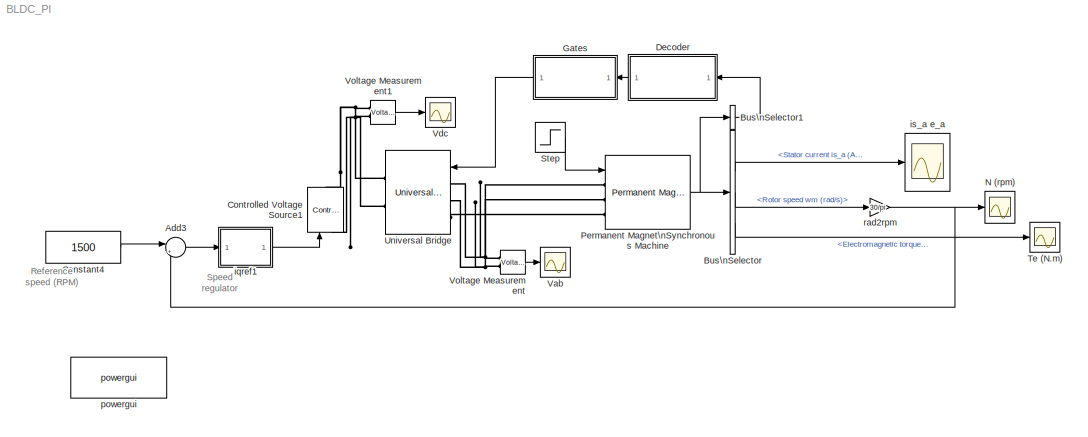
MODEL BLDC_PI
KIND model
BLOCK [Sum] Add3
  IconShape = round
  InputSameDT = off
  Inputs = |+-
  OutDataTypeStr = Inherit: Inherit via internal rule
  Ports = [2, 1]
  SID = 1
  SaturateOnIntegerOverflow = off
BLOCK [BusSelector] Bus\nSelector
  OutputAsBus = off
  OutputSignals = Stator current is_a (A),Rotor speed wm (rad/s),Electromagnetic torque Te (N*m)
  Ports = [1, 3]
  SID = 2
BLOCK [BusSelector] Bus\nSelector1
  OutputAsBus = on
  OutputSignals = Hall effect signal h_a,Hall effect signal h_b,Hall effect signal h_c
  Ports = [1, 1]
  SID = 3
BLOCK [Constant] Constant4
  SID = 4
  Value = 1500
BLOCK [Reference] Controlled Voltage Source1  REF=powerlib/Electrical\nSources/Controlled Voltage Source
  Amplitude = 160
  Frequency = 0
  Initialize = on
  Measurements = None
  Phase = 0
  Ports = [1, 0, 0, 0, 0, 1, 1]
  SID = 5
  SourceBlock = powerlib/Electrical\nSources/Controlled Voltage Source
  SourceProductBaseCode = PS
  SourceProductName = Simscape Electrical
  SourceType = Controlled Voltage Source
  Source_Type = AC
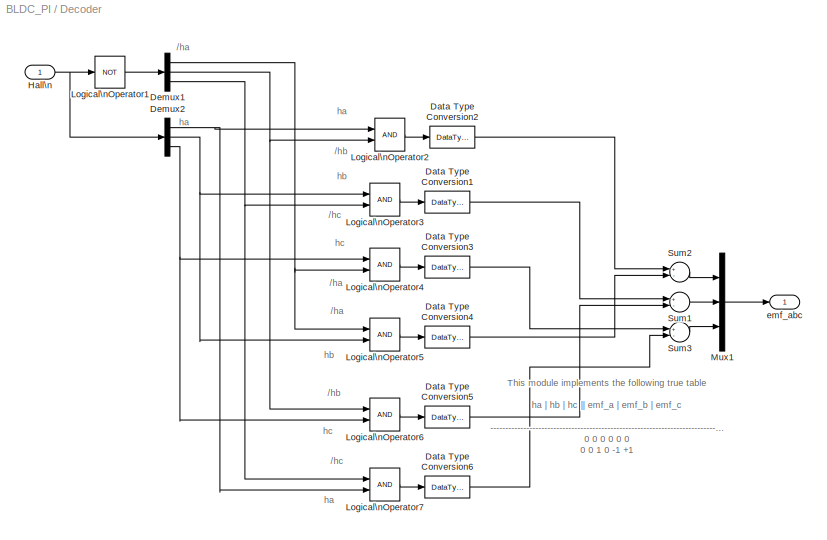
BLOCK [SubSystem] Decoder
  Ports = [1, 1]
  RequestExecContextInheritance = off
  SID = 6
BLOCK [DataTypeConversion] Decoder/Data Type Conversion1
  RndMeth = Floor
  SID = 8
  SaturateOnIntegerOverflow = off
BLOCK [DataTypeConversion] Decoder/Data Type Conversion2
  RndMeth = Floor
  SID = 9
  SaturateOnIntegerOverflow = off
BLOCK [DataTypeConversion] Decoder/Data Type Conversion3
  RndMeth = Floor
  SID = 10
  SaturateOnIntegerOverflow = off
BLOCK [DataTypeConversion] Decoder/Data Type Conversion4
  RndMeth = Floor
  SID = 11
  SaturateOnIntegerOverflow = off
BLOCK [DataTypeConversion] Decoder/Data Type Conversion5
  RndMeth = Floor
  SID = 12
  SaturateOnIntegerOverflow = off
BLOCK [DataTypeConversion] Decoder/Data Type Conversion6
  RndMeth = Floor
  SID = 13
  SaturateOnIntegerOverflow = off
BLOCK [Demux] Decoder/Demux1
  DisplayOption = bar
  Outputs = 3
  Ports = [1, 3]
  SID = 14
BLOCK [Demux] Decoder/Demux2
  DisplayOption = bar
  Outputs = 3
  Ports = [1, 3]
  SID = 15
BLOCK [Inport] Decoder/Hall\n
  IconDisplay = Port number
  SID = 7
BLOCK [Logic] Decoder/Logical\nOperator1
  AllPortsSameDT = off
  Operator = NOT
  OutDataTypeStr = boolean
  Ports = [1, 1]
  SID = 16
BLOCK [Logic] Decoder/Logical\nOperator2
  AllPortsSameDT = off
  OutDataTypeStr = boolean
  Ports = [2, 1]
  SID = 17
BLOCK [Logic] Decoder/Logical\nOperator3
  AllPortsSameDT = off
  OutDataTypeStr = boolean
  Ports = [2, 1]
  SID = 18
BLOCK [Logic] Decoder/Logical\nOperator4
  AllPortsSameDT = off
  OutDataTypeStr = boolean
  Ports = [2, 1]
  SID = 19
BLOCK [Logic] Decoder/Logical\nOperator5
  AllPortsSameDT = off
  OutDataTypeStr = boolean
  Ports = [2, 1]
  SID = 20
BLOCK [Logic] Decoder/Logical\nOperator6
  AllPortsSameDT = off
  OutDataTypeStr = boolean
  Ports = [2, 1]
  SID = 21
BLOCK [Logic] Decoder/Logical\nOperator7
  AllPortsSameDT = off
  OutDataTypeStr = boolean
  Ports = [2, 1]
  SID = 22
BLOCK [Mux] Decoder/Mux1
  DisplayOption = bar
  Inputs = 3
  Ports = [3, 1]
  SID = 23
BLOCK [Sum] Decoder/Sum1
  InputSameDT = off
  Inputs = +-
  OutDataTypeStr = double
  Ports = [2, 1]
  SID = 24
  SaturateOnIntegerOverflow = off
BLOCK [Sum] Decoder/Sum2
  InputSameDT = off
  Inputs = +-
  OutDataTypeStr = double
  Ports = [2, 1]
  SID = 25
  SaturateOnIntegerOverflow = off
BLOCK [Sum] Decoder/Sum3
  InputSameDT = off
  Inputs = +-
  OutDataTypeStr = double
  Ports = [2, 1]
  SID = 26
  SaturateOnIntegerOverflow = off
BLOCK [Outport] Decoder/emf_abc
  IconDisplay = Port number
  SID = 27
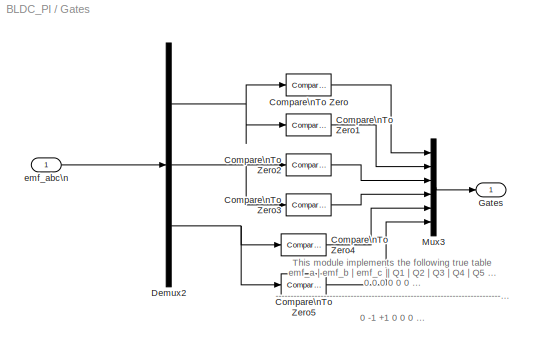
BLOCK [SubSystem] Gates
  Ports = [1, 1]
  RequestExecContextInheritance = off
  SID = 43
BLOCK [Reference] Gates/Compare\nTo Zero  REF=simulink/Logic and Bit\nOperations/Compare\nTo Zero
  OutDataTypeStr = boolean
  Ports = [1, 1]
  SID = 45
  SourceBlock = simulink/Logic and Bit\nOperations/Compare\nTo Zero
  SourceProductBaseCode = SL
  SourceProductName = Simulink
  SourceType = Compare To Zero
  ZeroCross = off
  relop = >
BLOCK [Reference] Gates/Compare\nTo Zero1  REF=simulink/Logic and Bit\nOperations/Compare\nTo Zero
  OutDataTypeStr = boolean
  Ports = [1, 1]
  SID = 46
  SourceBlock = simulink/Logic and Bit\nOperations/Compare\nTo Zero
  SourceProductBaseCode = SL
  SourceProductName = Simulink
  SourceType = Compare To Zero
  ZeroCross = off
  relop = <
BLOCK [Reference] Gates/Compare\nTo Zero2  REF=simulink/Logic and Bit\nOperations/Compare\nTo Zero
  OutDataTypeStr = boolean
  Ports = [1, 1]
  SID = 47
  SourceBlock = simulink/Logic and Bit\nOperations/Compare\nTo Zero
  SourceProductBaseCode = SL
  SourceProductName = Simulink
  SourceType = Compare To Zero
  ZeroCross = off
  relop = >
BLOCK [Reference] Gates/Compare\nTo Zero3  REF=simulink/Logic and Bit\nOperations/Compare\nTo Zero
  OutDataTypeStr = boolean
  Ports = [1, 1]
  SID = 48
  SourceBlock = simulink/Logic and Bit\nOperations/Compare\nTo Zero
  SourceProductBaseCode = SL
  SourceProductName = Simulink
  SourceType = Compare To Zero
  ZeroCross = off
  relop = <
BLOCK [Reference] Gates/Compare\nTo Zero4  REF=simulink/Logic and Bit\nOperations/Compare\nTo Zero
  OutDataTypeStr = boolean
  Ports = [1, 1]
  SID = 49
  SourceBlock = simulink/Logic and Bit\nOperations/Compare\nTo Zero
  SourceProductBaseCode = SL
  SourceProductName = Simulink
  SourceType = Compare To Zero
  ZeroCross = off
  relop = >
BLOCK [Reference] Gates/Compare\nTo Zero5  REF=simulink/Logic and Bit\nOperations/Compare\nTo Zero
  OutDataTypeStr = boolean
  Ports = [1, 1]
  SID = 50
  SourceBlock = simulink/Logic and Bit\nOperations/Compare\nTo Zero
  SourceProductBaseCode = SL
  SourceProductName = Simulink
  SourceType = Compare To Zero
  ZeroCross = off
  relop = <
BLOCK [Demux] Gates/Demux2
  DisplayOption = bar
  Outputs = 3
  Ports = [1, 3]
  SID = 51
BLOCK [Outport] Gates/Gates
  IconDisplay = Port number
  SID = 53
BLOCK [Mux] Gates/Mux3
  DisplayOption = bar
  Inputs = 6
  Ports = [6, 1]
  SID = 52
BLOCK [Inport] Gates/emf_abc\n
  IconDisplay = Port number
  SID = 44
BLOCK [Scope] N (rpm)
  Floating = off
  NumInputPorts = 1
  Ports = [1]
  SID = 55
  ScopeSpecificationString = C++SS(StrPVP('Location','[274, 250, 729, 522]'),StrPVP('Open','off'),StrPVP('ZoomMode','yonly'),MxPVP('AxesTitles',54,'struct(''axes1'',''Rotor speed (rpm)'')'),MxPVP('ScopeGraphics',57,'struct(''FigureColor'',''[0.5 0.5 0.5]'',''AxesColor'',''[0 0 0]'',''AxesTickColor'',''[1 1 1]'',''LineColors'',''[1 1 0;1 0 1;0 1 1;1 0 0;0 1 0;0 0 1]'',''LineStyles'',''-|-|-|-|-|-'',''LineWidths'',''[0.5 0.5 0....<+391ch>
BLOCK [Reference] Permanent Magnet\nSynchronous Machine  REF=powerlib/Machines/Permanent Magnet\nSynchronous Machine
  Flat = 120
  Flux = 0.105
  FluxDistribution = Trapezoidal
  Inductance = 2.72e-3
  InitialConditions = [0,0, 0,0]
  InitialConditions5ph = [0 0 0 0 0 0]
  La = 0.000835
  MachineConstant = Flux linkage established by magnets (V.s)
  MeasurementBus = off
  Mechanical = [ 0.8e-3, 1e-3,  4 ]
  MechanicalLoad = Torque Tm
  NbPhases = 3
  PolePairs = 4
  Ports = [1, 1, 0, 0, 0, 3]
  PresetModel = No
  RefAngle = 90 degrees behind phase A axis (modified Park)
  Resistance = 0.7
  RotorType = Round
  SID = 56
  ShowDetailedParameters = on
  SourceBlock = powerlib/Machines/Permanent Magnet\nSynchronous Machine
  SourceProductBaseCode = PS
  SourceProductName = Simscape Electrical
  SourceType = Permanent Magnet Synchronous Machine
  TorqueCst = 0.84
  TsBlock = -1
  TsPowergui = 0
  VoltageCst = 87.9646
  dqInductances = [8.5e-3, 8.5e-3]
BLOCK [Step] Step
  SID = 60
  SampleTime = 0
  Time = .1
BLOCK [Scope] Te (N.m)
  Floating = off
  NumInputPorts = 1
  Ports = [1]
  SID = 61
  ScopeSpecificationString = C++SS(StrPVP('Location','[420, 287, 875, 579]'),StrPVP('Open','off'),StrPVP('ZoomMode','yonly'),MxPVP('AxesTitles',54,'struct(''axes1'',''Electromagnetic Torque (Nm)'')'),MxPVP('ScopeGraphics',57,'struct(''FigureColor'',''[0.5 0.5 0.5]'',''AxesColor'',''[0 0 0]'',''AxesTickColor'',''[1 1 1]'',''LineColors'',''[1 1 0;1 0 1;0 1 1;1 0 0;0 1 0;0 0 1]'',''LineStyles'',''-|-|-|-|-|-'',''LineWidths'',''[...<+371ch>
BLOCK [Reference] Universal Bridge  REF=powerlib/Power\nElectronics/Universal Bridge
  Arms = 3
  Device = MOSFET / Diodes
  ForwardVoltage = 0
  ForwardVoltages = [  0  0  ]
  GTOparameters = [ 10e-6 , 20e-6 ]
  IGBTparameters = [ 1e-6 , 2e-6 ]
  Lon = 0
  Measurements = None
  Measurements_2 = None
  Ports = [1, 0, 0, 0, 0, 3, 2]
  Ron = 1e-3
  SID = 62
  SnubberCapacitance = 1e-6
  SnubberResistance = 5000
  SourceBlock = powerlib/Power\nElectronics/Universal Bridge
  SourceProductBaseCode = PS
  SourceProductName = Simscape Electrical
  SourceType = Universal Bridge
  converterType = Rectifier
BLOCK [Scope] Vab
  Floating = off
  NumInputPorts = 1
  Ports = [1]
  SID = 63
  ScopeSpecificationString = C++SS(StrPVP('Location','[385, 203, 1099, 668]'),StrPVP('Open','off'),StrPVP('ZoomMode','xonly'),MxPVP('AxesTitles',54,'struct(''axes1'',''Line-Line voltage Vab'')'),MxPVP('ScopeGraphics',57,'struct(''FigureColor'',''[0.5 0.5 0.5]'',''AxesColor'',''[0 0 0]'',''AxesTickColor'',''[1 1 1]'',''LineColors'',''[1 1 0;1 0 1;0 1 1;1 0 0;0 1 0;0 0 1]'',''LineStyles'',''-|-|-|-|-|-'',''LineWidths'',''[0.5 0...<+340ch>
BLOCK [Scope] Vdc
  Floating = off
  NumInputPorts = 1
  Ports = [1]
  SID = 64
  ScopeSpecificationString = C++SS(StrPVP('Location','[245, 225, 669, 573]'),StrPVP('Open','off'),StrPVP('ZoomMode','xonly'),MxPVP('AxesTitles',54,'struct(''axes1'',''DC bus voltage'')'),MxPVP('ScopeGraphics',57,'struct(''FigureColor'',''[0.5 0.5 0.5]'',''AxesColor'',''[0 0 0]'',''AxesTickColor'',''[1 1 1]'',''LineColors'',''[1 1 0;1 0 1;0 1 1;1 0 0;0 1 0;0 0 1]'',''LineStyles'',''-|-|-|-|-|-'',''LineWidths'',''[0.5 0.5 0.5 0...<+357ch>
BLOCK [Reference] Voltage Measurement  REF=powerlib/Measurements/Voltage Measurement
  OutputType = Complex
  PSBequivalent = 0
  PhasorSimulation = off
  Ports = [0, 1, 0, 0, 0, 2]
  SID = 65
  SourceBlock = powerlib/Measurements/Voltage Measurement
  SourceProductBaseCode = PS
  SourceProductName = Simscape Electrical
  SourceType = Voltage Measurement
BLOCK [Reference] Voltage Measurement1  REF=powerlib/Measurements/Voltage Measurement
  OutputType = Complex
  PSBequivalent = 0
  PhasorSimulation = off
  Ports = [0, 1, 0, 0, 0, 2]
  SID = 66
  SourceBlock = powerlib/Measurements/Voltage Measurement
  SourceProductBaseCode = PS
  SourceProductName = Simscape Electrical
  SourceType = Voltage Measurement
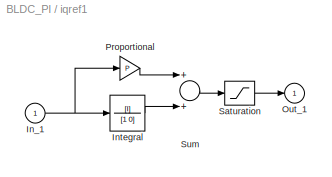
BLOCK [SubSystem] iqref1
  Ports = [1, 1]
  RequestExecContextInheritance = off
  SID = 67
BLOCK [Inport] iqref1/In_1
  IconDisplay = Port number
  SID = 68
BLOCK [TransferFcn] iqref1/Integral
  Denominator = [1 0]
  Numerator = [I]
  SID = 69
BLOCK [Outport] iqref1/Out_1
  IconDisplay = Port number
  InitialOutput = 0
  SID = 73
BLOCK [Gain] iqref1/Proportional
  Gain = P
  SID = 70
BLOCK [Saturate] iqref1/Saturation
  InputPortMap = u0
  LowerLimit = min
  Ports = [1, 1]
  SID = 71
  UpperLimit = max
BLOCK [Sum] iqref1/Sum
  Ports = [2, 1]
  SID = 72
BLOCK [Scope] is_a e_a
  Floating = off
  NumInputPorts = 1
  Ports = [1]
  SID = 74
  ScopeSpecificationString = C++SS(StrPVP('Location','[202, 100, 910, 567]'),StrPVP('Open','off'),StrPVP('ZoomMode','yonly'),MxPVP('AxesTitles',54,'struct(''axes1'',''Stator current ia'')'),MxPVP('ScopeGraphics',57,'struct(''FigureColor'',''[0.5 0.5 0.5]'',''AxesColor'',''[0 0 0]'',''AxesTickColor'',''[1 1 1]'',''LineColors'',''[1 1 0;1 0 1;0 1 1;1 0 0;0 1 0;0 0 1]'',''LineStyles'',''-|-|-|-|-|-'',''LineWidths'',''[0.5 0.5 0....<+392ch>
BLOCK [Reference] powergui  REF=powerlib/powergui
  DisableRonSwitches = off
  DisableSnubberDevices = off
  DisableVfSwitches = off
  DisplayEquations = off
  DisplayStyle = 1
  EnableUseOfTLC = off
  ErrMax = 1e-4
  Frange = [0:2:500]
  FreqAxis = off
  FunctionMessages = off
  HookPort = off
  Interpol = off
  Iterations = 50
  MaxFrequency = 1000
  Pbase = 100e6
  Ports = []
  Priority = 2
  ResistiveCurrentMeasurement = off
  RestoreLinks = warning
  RmsSteady = 1
  SID = 75
  SPID = off
  SampleTime = 5e-7
  ShowGrid = off
  SolverType = Tustin
  SourceBlock = powerlib/powergui
  SourceProductBaseCode = PS
  SourceProductName = Simscape Electrical
  SourceType = PSB option menu block
  StartTime = 0.0
  SwTol = 0
  Ts = 0
  UnitsV = kV
  UnitsW = MW
  UserData = DataTag0
  UserDataPersistent = on
  Xlog = on
  Ylog = off
  ZoomFFT = on
  cycles = 1
  display = off
  echomessages = off
  frequency = 60
  frequencyindice = 0
  frequencyindicesteady = 1
  fundamental = 60
  methode = off
  save = off
  structure = 0
  variable = ZData
  x0status = blocks
BLOCK [Gain] rad2rpm
  Gain = 30/pi
  OutDataTypeStr = Inherit: Inherit via internal rule
  ParamDataTypeStr = Inherit: Inherit via internal rule
  SID = 76
  SaturateOnIntegerOverflow = off
ANNOTATION (root): Reference \nspeed (RPM)
ANNOTATION (root): Speed \nregulator
ANNOTATION Decoder: /ha
ANNOTATION Decoder: /hb
ANNOTATION Decoder: /hc
ANNOTATION Decoder: This module implements the following true table\n\n ha | hb | hc || emf_a | emf_b | emf_c\n --------------------------------------------------------------------------------\n0 0 0 0 0 0 \n0 0 1 0 -1 +1\n0 1 0 -1 +1 0\n0 1 1 -1 0 +1\n1 0 0 +1 0 -1\n1 0 1 +1 -1 0\n1 1 0 0 +1 -1\n1 1 1 0 0 0\n
ANNOTATION Decoder: ha
ANNOTATION Decoder: hb
ANNOTATION Decoder: hc
ANNOTATION Gates: This module implements the following true table\n\n emf_a | emf_b | emf_c || Q1 | Q2 | Q3 | Q4 | Q5 | Q6\n ------------------------------------------------------------------------------------------------------------------\n 0 0 0 0 0 0 0 0 0\n 0 -1 +1 0 0 0 1 1 0\n -1 +1 0 0 1 1 0 0 0\n -1 0 +1 0 1 0 0 1 0\n +1 0 -1 1 0 0 0 0 1\n +1 -1 0 1 0 0 1 0 0\n 0 +1 -1 0 0 1 0 0 1\n 0 0 0 0 0 0 0 0 0\n
LINE Add3:1 -> iqref1:1
LINE Bus\nSelector1:1 -> Decoder:1
LINE Bus\nSelector:1 -> is_a e_a:1
LINE Bus\nSelector:2 -> rad2rpm:1
LINE Bus\nSelector:3 -> Te (N.m):1
LINE Constant4:1 -> Add3:1
LINE Decoder/Data Type Conversion1:1 -> Decoder/Sum1:1
LINE Decoder/Data Type Conversion2:1 -> Decoder/Sum2:1
LINE Decoder/Data Type Conversion3:1 -> Decoder/Sum3:1
LINE Decoder/Data Type Conversion4:1 -> Decoder/Sum2:2
LINE Decoder/Data Type Conversion5:1 -> Decoder/Sum1:2
LINE Decoder/Data Type Conversion6:1 -> Decoder/Sum3:2
NET Decoder/Demux1:1 -> Decoder/Logical\nOperator4:2, Decoder/Logical\nOperator5:1
NET Decoder/Demux1:2 -> Decoder/Logical\nOperator2:2, Decoder/Logical\nOperator6:1
NET Decoder/Demux1:3 -> Decoder/Logical\nOperator3:2, Decoder/Logical\nOperator7:1
NET Decoder/Demux2:1 -> Decoder/Logical\nOperator2:1, Decoder/Logical\nOperator7:2
NET Decoder/Demux2:2 -> Decoder/Logical\nOperator3:1, Decoder/Logical\nOperator5:2
NET Decoder/Demux2:3 -> Decoder/Logical\nOperator4:1, Decoder/Logical\nOperator6:2
NET Decoder/Hall\n:1 -> Decoder/Demux2:1, Decoder/Logical\nOperator1:1
LINE Decoder/Logical\nOperator1:1 -> Decoder/Demux1:1
LINE Decoder/Logical\nOperator2:1 -> Decoder/Data Type Conversion2:1
LINE Decoder/Logical\nOperator3:1 -> Decoder/Data Type Conversion1:1
LINE Decoder/Logical\nOperator4:1 -> Decoder/Data Type Conversion3:1
LINE Decoder/Logical\nOperator5:1 -> Decoder/Data Type Conversion4:1
LINE Decoder/Logical\nOperator6:1 -> Decoder/Data Type Conversion5:1
LINE Decoder/Logical\nOperator7:1 -> Decoder/Data Type Conversion6:1
LINE Decoder/Mux1:1 -> Decoder/emf_abc:1
LINE Decoder/Sum1:1 -> Decoder/Mux1:2
LINE Decoder/Sum2:1 -> Decoder/Mux1:1
LINE Decoder/Sum3:1 -> Decoder/Mux1:3
LINE Decoder:1 -> Gates:1
LINE Gates/Compare\nTo Zero1:1 -> Gates/Mux3:2
LINE Gates/Compare\nTo Zero2:1 -> Gates/Mux3:3
LINE Gates/Compare\nTo Zero3:1 -> Gates/Mux3:4
LINE Gates/Compare\nTo Zero4:1 -> Gates/Mux3:5
LINE Gates/Compare\nTo Zero5:1 -> Gates/Mux3:6
LINE Gates/Compare\nTo Zero:1 -> Gates/Mux3:1
NET Gates/Demux2:1 -> Gates/Compare\nTo Zero1:1, Gates/Compare\nTo Zero:1
NET Gates/Demux2:2 -> Gates/Compare\nTo Zero2:1, Gates/Compare\nTo Zero3:1
NET Gates/Demux2:3 -> Gates/Compare\nTo Zero4:1, Gates/Compare\nTo Zero5:1
LINE Gates/Mux3:1 -> Gates/Gates:1
LINE Gates/emf_abc\n:1 -> Gates/Demux2:1
LINE Gates:1 -> Universal Bridge:1
NET Permanent Magnet\nSynchronous Machine:1 -> Bus\nSelector1:1, Bus\nSelector:1
LINE Step:1 -> Permanent Magnet\nSynchronous Machine:1
LINE Voltage Measurement1:1 -> Vdc:1
LINE Voltage Measurement:1 -> Vab:1
NET iqref1/In_1:1 -> iqref1/Integral:1, iqref1/Proportional:1
LINE iqref1/Integral:1 -> iqref1/Sum:2
LINE iqref1/Proportional:1 -> iqref1/Sum:1
LINE iqref1/Saturation:1 -> iqref1/Out_1:1
LINE iqref1/Sum:1 -> iqref1/Saturation:1
LINE iqref1:1 -> Controlled Voltage Source1:1
NET rad2rpm:1 -> Add3:2, N (rpm):1
PNET net1: Controlled Voltage Source1:LConn1 -- Universal Bridge:RConn2 -- Voltage Measurement1:LConn2
PNET net2: Controlled Voltage Source1:RConn1 -- Universal Bridge:RConn1 -- Voltage Measurement1:LConn1
PNET net3: Permanent Magnet\nSynchronous Machine:LConn1 -- Universal Bridge:LConn1 -- Voltage Measurement:LConn1
PNET net4: Permanent Magnet\nSynchronous Machine:LConn2 -- Universal Bridge:LConn2 -- Voltage Measurement:LConn2
PLINE Permanent Magnet\nSynchronous Machine:LConn3 -- Universal Bridge:LConn3
note: NET lines group one-source signal fan-out (src -> all destinations, sorted); 1:1 wires keep LINE; PNET lines group multi-terminal physical nets as a canonical sorted terminal list (undirected conserving connections); 2-terminal nets keep the pairwise PLINE form
